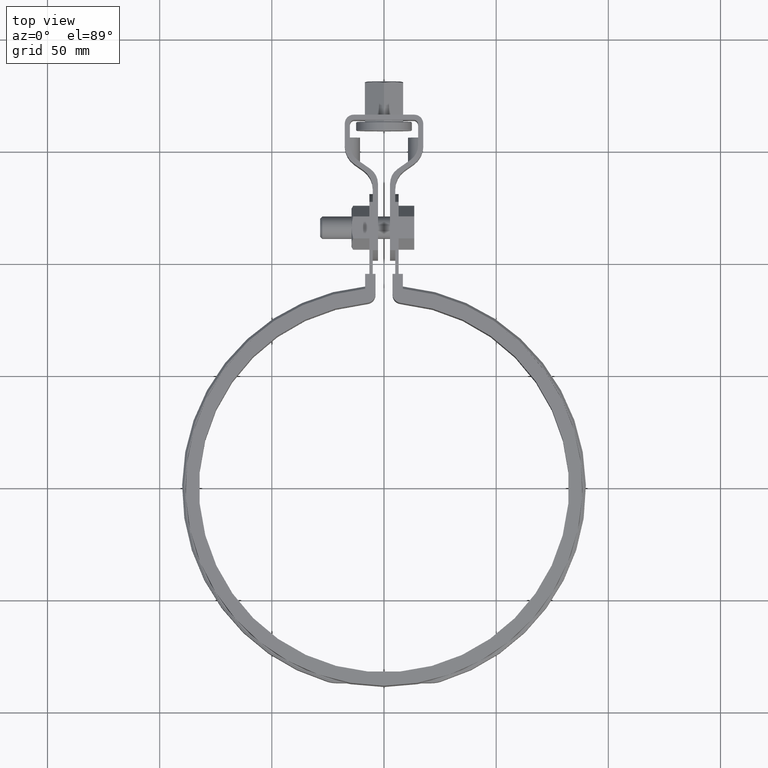
[diagram: clean part render]
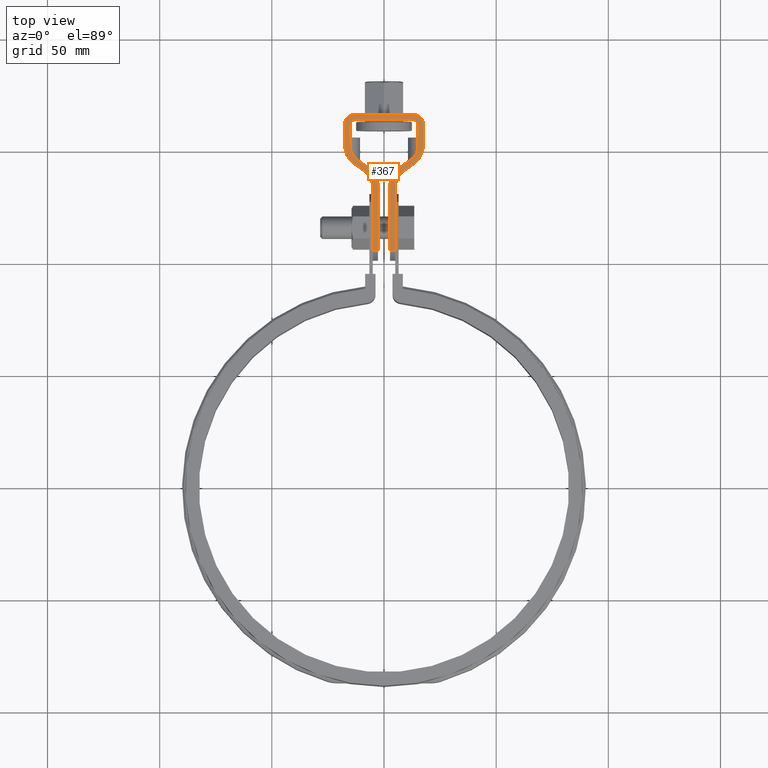
[diagram: same view with one face highlighted and labeled with its STEP entity id]
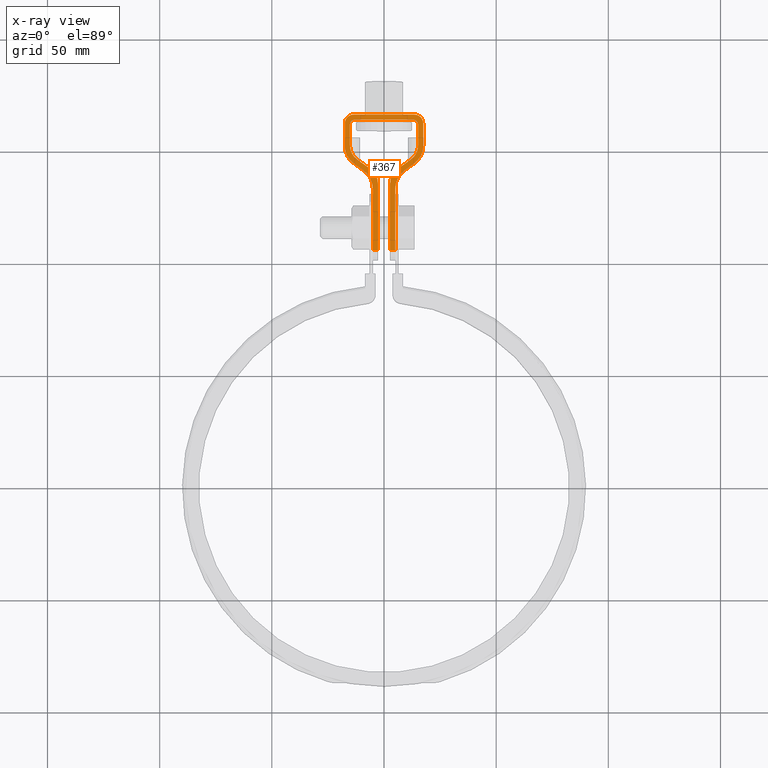
[diagram: x-ray of the same camera — body ghosted, the highlighted face saturated]
A machine part, top view. The second image highlights one B-rep face of the part: STEP entity #367.
The next image is the same camera in x-ray: the body ghosted, the highlighted face saturated — about 0% of this face is hidden behind the body in this view.
In plain terms, the highlighted planar face has unit normal (-0, 0, 1).
Its self-contained STEP definition (entity closure, byte-faithful):
#367 = ADVANCED_FACE( '', ( #604 ), #605, .T. );
#604 = FACE_OUTER_BOUND( '', #1358, .T. );
#605 = PLANE( '', #1359 );
#1358 = EDGE_LOOP( '', ( #3223, #3224, #3225, #3226, #3227, #3228, #3229, #3230, #3231, #3232, #3233, #3234, #3235, #3236, #3237, #3238, #3239, #3240, #3241, #3242, #3243, #3244, #3245, #3246, #3247, #3248, #3249, #3250 ) );
#1359 = AXIS2_PLACEMENT_3D( '', #3251, #3252, #3253 );
#3223 = ORIENTED_EDGE( '', *, *, #5144, .T. );
#3224 = ORIENTED_EDGE( '', *, *, #5092, .T. );
#3225 = ORIENTED_EDGE( '', *, *, #5094, .T. );
#3226 = ORIENTED_EDGE( '', *, *, #5159, .T. );
#3227 = ORIENTED_EDGE( '', *, *, #5164, .T. );
#3228 = ORIENTED_EDGE( '', *, *, #5166, .T. );
#3229 = ORIENTED_EDGE( '', *, *, #5152, .T. );
#3230 = ORIENTED_EDGE( '', *, *, #5167, .T. );
#3231 = ORIENTED_EDGE( '', *, *, #5168, .T. );
#3232 = ORIENTED_EDGE( '', *, *, #5156, .T. );
#3233 = ORIENTED_EDGE( '', *, *, #5169, .T. );
#3234 = ORIENTED_EDGE( '', *, *, #5147, .T. );
#3235 = ORIENTED_EDGE( '', *, *, #5063, .T. );
#3236 = ORIENTED_EDGE( '', *, *, #5170, .T. );
#3237 = ORIENTED_EDGE( '', *, *, #5171, .T. );
#3238 = ORIENTED_EDGE( '', *, *, #5172, .T. );
#3239 = ORIENTED_EDGE( '', *, *, #5127, .T. );
#3240 = ORIENTED_EDGE( '', *, *, #5173, .T. );
#3241 = ORIENTED_EDGE( '', *, *, #5174, .T. );
#3242 = ORIENTED_EDGE( '', *, *, #5100, .T. );
#3243 = ORIENTED_EDGE( '', *, *, #5175, .T. );
#3244 = ORIENTED_EDGE( '', *, *, #5176, .T. );
#3245 = ORIENTED_EDGE( '', *, *, #5177, .T. );
#3246 = ORIENTED_EDGE( '', *, *, #5125, .T. );
#3247 = ORIENTED_EDGE( '', *, *, #5116, .T. );
#3248 = ORIENTED_EDGE( '', *, *, #5124, .T. );
#3249 = ORIENTED_EDGE( '', *, *, #5134, .T. );
#3250 = ORIENTED_EDGE( '', *, *, #5161, .T. );
#3251 = CARTESIAN_POINT( '', ( 13.4999999999999, 162.102813742387, -6.90419943438678E-013 ) );
#3252 = DIRECTION( '', ( -1.59641724029688E-028, 1.75137682134619E-013, 1.00000000000000 ) );
#3253 = DIRECTION( '', ( 1.00000000000000, 9.11521279052786E-016, 0.000000000000000 ) );
#5063 = EDGE_CURVE( '', #5622, #5620, #5623, .T. );
#5092 = EDGE_CURVE( '', #5678, #5676, #5679, .T. );
#5094 = EDGE_CURVE( '', #5676, #5681, #5682, .T. );
#5100 = EDGE_CURVE( '', #5687, #5691, #5693, .T. );
#5116 = EDGE_CURVE( '', #5722, #5720, #5723, .T. );
#5124 = EDGE_CURVE( '', #5720, #5733, #5735, .T. );
#5125 = EDGE_CURVE( '', #5736, #5722, #5737, .T. );
#5127 = EDGE_CURVE( '', #5739, #5740, #5741, .T. );
#5134 = EDGE_CURVE( '', #5733, #5748, #5750, .T. );
#5144 = EDGE_CURVE( '', #5765, #5678, #5766, .T. );
#5147 = EDGE_CURVE( '', #5770, #5622, #5771, .F. );
#5152 = EDGE_CURVE( '', #5778, #5776, #5779, .T. );
#5156 = EDGE_CURVE( '', #5784, #5785, #5786, .F. );
#5159 = EDGE_CURVE( '', #5681, #5789, #5790, .T. );
#5161 = EDGE_CURVE( '', #5748, #5765, #5792, .F. );
#5164 = EDGE_CURVE( '', #5789, #5796, #5798, .T. );
#5166 = EDGE_CURVE( '', #5796, #5778, #5800, .F. );
#5167 = EDGE_CURVE( '', #5776, #5801, #5802, .F. );
#5168 = EDGE_CURVE( '', #5801, #5784, #5803, .T. );
#5169 = EDGE_CURVE( '', #5785, #5770, #5804, .T. );
#5170 = EDGE_CURVE( '', #5620, #5805, #5806, .T. );
#5171 = EDGE_CURVE( '', #5805, #5807, #5808, .T. );
#5172 = EDGE_CURVE( '', #5807, #5739, #5809, .T. );
#5173 = EDGE_CURVE( '', #5740, #5810, #5811, .F. );
#5174 = EDGE_CURVE( '', #5810, #5687, #5812, .T. );
#5175 = EDGE_CURVE( '', #5691, #5813, #5814, .T. );
#5176 = EDGE_CURVE( '', #5813, #5815, #5816, .T. );
#5177 = EDGE_CURVE( '', #5815, #5736, #5817, .T. );
#5620 = VERTEX_POINT( '', #7489 );
#5622 = VERTEX_POINT( '', #7492 );
#5623 = LINE( '', #7493, #7494 );
#5676 = VERTEX_POINT( '', #7563 );
#5678 = VERTEX_POINT( '', #7565 );
#5679 = LINE( '', #7566, #7567 );
#5681 = VERTEX_POINT( '', #7569 );
#5682 = LINE( '', #7570, #7571 );
#5687 = VERTEX_POINT( '', #7577 );
#5691 = VERTEX_POINT( '', #7601 );
#5693 = CIRCLE( '', #7604, 9.99999999999801 );
#5720 = VERTEX_POINT( '', #7654 );
#5722 = VERTEX_POINT( '', #7657 );
#5723 = LINE( '', #7658, #7659 );
#5733 = VERTEX_POINT( '', #7687 );
#5735 = CIRCLE( '', #7690, 9.99999999999801 );
#5736 = VERTEX_POINT( '', #7691 );
#5737 = CIRCLE( '', #7692, 3.99999999999920 );
#5739 = VERTEX_POINT( '', #7695 );
#5740 = VERTEX_POINT( '', #7696 );
#5741 = LINE( '', #7697, #7698 );
#5748 = VERTEX_POINT( '', #7726 );
#5750 = LINE( '', #7729, #7730 );
#5765 = VERTEX_POINT( '', #7768 );
#5766 = LINE( '', #7769, #7770 );
#5770 = VERTEX_POINT( '', #7775 );
#5771 = CIRCLE( '', #7776, 7.99999999999841 );
#5776 = VERTEX_POINT( '', #7784 );
#5778 = VERTEX_POINT( '', #7787 );
#5779 = LINE( '', #7788, #7789 );
#5784 = VERTEX_POINT( '', #7797 );
#5785 = VERTEX_POINT( '', #7798 );
#5786 = CIRCLE( '', #7799, 1.99999999999960 );
#5789 = VERTEX_POINT( '', #7804 );
#5790 = CIRCLE( '', #7805, 7.99999999999841 );
#5792 = CIRCLE( '', #7808, 9.99999999999801 );
#5796 = VERTEX_POINT( '', #7812 );
#5798 = LINE( '', #7815, #7816 );
#5800 = CIRCLE( '', #7819, 7.99999999999841 );
#5801 = VERTEX_POINT( '', #7820 );
#5802 = CIRCLE( '', #7821, 1.99999999999960 );
#5803 = LINE( '', #7822, #7823 );
#5804 = LINE( '', #7824, #7825 );
#5805 = VERTEX_POINT( '', #7826 );
#5806 = CIRCLE( '', #7827, 7.99999999999841 );
#5807 = VERTEX_POINT( '', #7828 );
#5808 = LINE( '', #7829, #7830 );
#5809 = LINE( '', #7831, #7832 );
#5810 = VERTEX_POINT( '', #7833 );
#5811 = CIRCLE( '', #7834, 9.99999999999801 );
#5812 = LINE( '', #7835, #7836 );
#5813 = VERTEX_POINT( '', #7837 );
#5814 = LINE( '', #7838, #7839 );
#5815 = VERTEX_POINT( '', #7840 );
#5816 = CIRCLE( '', #7841, 3.99999999999920 );
#5817 = LINE( '', #7842, #7843 );
#7489 = CARTESIAN_POINT( '', ( 6.11138850919204, 141.936203680936, 2.84354768626409E-012 ) );
#7492 = CARTESIAN_POINT( '', ( 11.7886114908084, 145.911438008762, 2.14551703064533E-012 ) );
#7493 = CARTESIAN_POINT( '', ( 20.5444285656342, 152.042327127741, 1.07155036339676E-012 ) );
#7494 = VECTOR( '', #9680, 1000.00000000000 );
#7563 = CARTESIAN_POINT( '', ( -2.69999999999998, 105.725658661500, 9.13859055873880E-012 ) );
#7565 = CARTESIAN_POINT( '', ( -4.99999999999999, 105.725658661500, 9.13685583526283E-012 ) );
#7566 = CARTESIAN_POINT( '', ( 81.1487655465074, 105.725658661500, 9.18376065640719E-012 ) );
#7567 = VECTOR( '', #9733, 1000.00000000000 );
#7569 = CARTESIAN_POINT( '', ( -2.69999999999998, 135.382987326627, 3.98986399474666E-012 ) );
#7570 = CARTESIAN_POINT( '', ( -2.69999999999997, 162.102813742387, -6.90419943438680E-013 ) );
#7571 = VECTOR( '', #9737, 1000.00000000000 );
#7577 = CARTESIAN_POINT( '', ( 13.2357643635101, 144.116963805019, 2.46245376859549E-012 ) );
#7601 = CARTESIAN_POINT( '', ( 17.5000000000000, 152.308484247907, 1.02695629777827E-012 ) );
#7604 = AXIS2_PLACEMENT_3D( '', #9744, #9745, #9746 );
#7654 = CARTESIAN_POINT( '', ( -17.4999999999999, 152.308484247907, 1.02645127890554E-012 ) );
#7657 = CARTESIAN_POINT( '', ( -17.4999999999999, 162.102813742388, -6.89552581700784E-013 ) );
#7658 = CARTESIAN_POINT( '', ( -17.4999999999999, 162.102813742387, -6.90419943438682E-013 ) );
#7659 = VECTOR( '', #9771, 1000.00000000000 );
#7687 = CARTESIAN_POINT( '', ( -13.2357643635104, 144.116963805019, 2.45978724260108E-012 ) );
#7690 = AXIS2_PLACEMENT_3D( '', #9782, #9783, #9784 );
#7691 = CARTESIAN_POINT( '', ( -13.4999999999999, 166.102813742387, -1.38843797570219E-012 ) );
#7692 = AXIS2_PLACEMENT_3D( '', #9785, #9786, #9787 );
#7695 = CARTESIAN_POINT( '', ( 4.99999999999999, 105.725658661500, 9.14206000569076E-012 ) );
#7696 = CARTESIAN_POINT( '', ( 4.99999999999999, 133.144549009255, 4.38538094726937E-012 ) );
#7697 = CARTESIAN_POINT( '', ( 4.99999999999999, 162.102813742387, -6.90419943438679E-013 ) );
#7698 = VECTOR( '', #9789, 1000.00000000000 );
#7726 = CARTESIAN_POINT( '', ( -9.26423563648981, 141.336069452142, 2.94988347645215E-012 ) );
#7729 = CARTESIAN_POINT( '', ( -3.74638243434747, 137.472427045266, 3.62328889277438E-012 ) );
#7730 = VECTOR( '', #9799, 1000.00000000000 );
#7768 = CARTESIAN_POINT( '', ( -4.99999999999997, 133.144549009255, 4.38538094726937E-012 ) );
#7769 = CARTESIAN_POINT( '', ( -4.99999999999999, 162.102813742387, -6.90419943438680E-013 ) );
#7770 = VECTOR( '', #9816, 1000.00000000000 );
#7775 = CARTESIAN_POINT( '', ( 15.2000000000000, 152.464654363073, 9.98796779196602E-013 ) );
#7776 = AXIS2_PLACEMENT_3D( '', #9821, #9822, #9823 );
#7784 = CARTESIAN_POINT( '', ( -15.1999999999999, 161.802813742388, -6.31439345255558E-013 ) );
#7787 = CARTESIAN_POINT( '', ( -15.1999999999999, 152.464654363073, 9.99200722162640E-013 ) );
#7788 = CARTESIAN_POINT( '', ( -15.1999999999999, 162.102813742387, -6.90419943438681E-013 ) );
#7789 = VECTOR( '', #9828, 1000.00000000000 );
#7797 = CARTESIAN_POINT( '', ( 13.1999999999999, 163.802813742387, -9.84226589117882E-013 ) );
#7798 = CARTESIAN_POINT( '', ( 15.1999999999999, 161.802813742388, -6.31439345255558E-013 ) );
#7799 = AXIS2_PLACEMENT_3D( '', #9832, #9833, #9834 );
#7804 = CARTESIAN_POINT( '', ( -6.11138850919176, 141.936203680937, 2.84354768626403E-012 ) );
#7805 = AXIS2_PLACEMENT_3D( '', #9837, #9838, #9839 );
#7808 = AXIS2_PLACEMENT_3D( '', #9841, #9842, #9843 );
#7812 = CARTESIAN_POINT( '', ( -11.7886114908082, 145.911438008762, 2.14551703064526E-012 ) );
#7815 = CARTESIAN_POINT( '', ( -2.42715663073957, 139.356476747131, 3.29332079496332E-012 ) );
#7816 = VECTOR( '', #9848, 1000.00000000000 );
#7819 = AXIS2_PLACEMENT_3D( '', #9850, #9851, #9852 );
#7820 = CARTESIAN_POINT( '', ( -13.1999999999999, 163.802813742387, -9.82561254581032E-013 ) );
#7821 = AXIS2_PLACEMENT_3D( '', #9853, #9854, #9855 );
#7822 = CARTESIAN_POINT( '', ( 13.4999999999999, 163.802813742387, -9.88154003067460E-013 ) );
#7823 = VECTOR( '', #9856, 1000.00000000000 );
#7824 = CARTESIAN_POINT( '', ( 15.2000000000000, 162.102813742387, -6.90419943438678E-013 ) );
#7825 = VECTOR( '', #9857, 1000.00000000000 );
#7826 = CARTESIAN_POINT( '', ( 2.69999999999999, 135.382987326627, 3.98986399474666E-012 ) );
#7827 = AXIS2_PLACEMENT_3D( '', #9858, #9859, #9860 );
#7828 = CARTESIAN_POINT( '', ( 2.69999999999998, 105.725658661500, 9.14032528221478E-012 ) );
#7829 = CARTESIAN_POINT( '', ( 2.69999999999997, 162.102813742387, -6.90419943438679E-013 ) );
#7830 = VECTOR( '', #9861, 1000.00000000000 );
#7831 = CARTESIAN_POINT( '', ( 81.1487655465074, 105.725658661500, 9.18376065640719E-012 ) );
#7832 = VECTOR( '', #9862, 1000.00000000000 );
#7833 = CARTESIAN_POINT( '', ( 9.26423563648958, 141.336069452143, 2.94928087842121E-012 ) );
#7834 = AXIS2_PLACEMENT_3D( '', #9863, #9864, #9865 );
#7835 = CARTESIAN_POINT( '', ( 21.8636543692411, 150.158277425878, 1.40151846120756E-012 ) );
#7836 = VECTOR( '', #9866, 1000.00000000000 );
#7837 = CARTESIAN_POINT( '', ( 17.5000000000000, 162.102813742388, -6.86950496486815E-013 ) );
#7838 = CARTESIAN_POINT( '', ( 17.5000000000000, 162.102813742387, -6.90419943438677E-013 ) );
#7839 = VECTOR( '', #9867, 1000.00000000000 );
#7840 = CARTESIAN_POINT( '', ( 13.5000000000000, 166.102813742387, -1.38843797570219E-012 ) );
#7841 = AXIS2_PLACEMENT_3D( '', #9868, #9869, #9870 );
#7842 = CARTESIAN_POINT( '', ( 13.4999999999999, 166.102813742387, -1.39097067197708E-012 ) );
#7843 = VECTOR( '', #9871, 1000.00000000000 );
#9680 = DIRECTION( '', ( -0.819152044288939, -0.573576436351121, 1.00454847589570E-013 ) );
#9733 = DIRECTION( '', ( 1.00000000000000, 3.03451482752664E-016, 1.09521223212606E-015 ) );
#9737 = DIRECTION( '', ( -2.42736161093456E-016, 1.00000000000000, -1.75137682134619E-013 ) );
#9744 = CARTESIAN_POINT( '', ( 7.49999999999996, 152.308484247907, 1.02695629777827E-012 ) );
#9745 = DIRECTION( '', ( -1.59641724029688E-028, 1.75137682134619E-013, 1.00000000000000 ) );
#9746 = DIRECTION( '', ( 0.000000000000000, -1.00000000000000, 1.75137682134619E-013 ) );
#9771 = DIRECTION( '', ( 2.34062543713413E-016, -1.00000000000000, 1.75137682134619E-013 ) );
#9782 = CARTESIAN_POINT( '', ( -7.49999999999998, 152.308484247907, 1.02695629777827E-012 ) );
#9783 = DIRECTION( '', ( -1.59641724029688E-028, 1.75137682134619E-013, 1.00000000000000 ) );
#9784 = DIRECTION( '', ( 0.000000000000000, -1.00000000000000, 1.75137682134619E-013 ) );
#9785 = CARTESIAN_POINT( '', ( -13.4999999999999, 162.102813742388, -6.86950496486816E-013 ) );
#9786 = DIRECTION( '', ( -1.59641724029688E-028, 1.75137682134619E-013, 1.00000000000000 ) );
#9787 = DIRECTION( '', ( 0.000000000000000, -1.00000000000000, 1.75137682134619E-013 ) );
#9789 = DIRECTION( '', ( -2.42736161093456E-016, 1.00000000000000, -1.75137682134619E-013 ) );
#9799 = DIRECTION( '', ( 0.819152044288939, -0.573576436351121, 1.00454847589570E-013 ) );
#9816 = DIRECTION( '', ( 2.42736161093295E-016, -1.00000000000000, 1.75137682134619E-013 ) );
#9821 = CARTESIAN_POINT( '', ( 7.19999999999996, 152.464654363073, 9.99200722162641E-013 ) );
#9822 = DIRECTION( '', ( -1.59641724029688E-028, 1.75137682134619E-013, 1.00000000000000 ) );
#9823 = DIRECTION( '', ( 0.000000000000000, -1.00000000000000, 1.75137682134619E-013 ) );
#9828 = DIRECTION( '', ( -2.42736161093456E-016, 1.00000000000000, -1.75137682134619E-013 ) );
#9832 = CARTESIAN_POINT( '', ( 13.2000000000000, 161.802813742388, -6.31439345255558E-013 ) );
#9833 = DIRECTION( '', ( -1.59641724029688E-028, 1.75137682134619E-013, 1.00000000000000 ) );
#9834 = DIRECTION( '', ( 0.000000000000000, -1.00000000000000, 1.75137682134619E-013 ) );
#9837 = CARTESIAN_POINT( '', ( -10.6999999999999, 135.382987326627, 3.98986399474666E-012 ) );
#9838 = DIRECTION( '', ( -1.59641724029688E-028, 1.75137682134619E-013, 1.00000000000000 ) );
#9839 = DIRECTION( '', ( 0.000000000000000, -1.00000000000000, 1.75137682134619E-013 ) );
#9841 = CARTESIAN_POINT( '', ( -14.9999999999999, 133.144549009255, 4.38538094726937E-012 ) );
#9842 = DIRECTION( '', ( -1.59641724029688E-028, 1.75137682134619E-013, 1.00000000000000 ) );
#9843 = DIRECTION( '', ( 0.000000000000000, -1.00000000000000, 1.75137682134619E-013 ) );
#9848 = DIRECTION( '', ( -0.819152044288939, 0.573576436351121, -1.00454847589570E-013 ) );
#9850 = CARTESIAN_POINT( '', ( -7.20000000000000, 152.464654363073, 9.99200722162641E-013 ) );
#9851 = DIRECTION( '', ( -1.59641724029688E-028, 1.75137682134619E-013, 1.00000000000000 ) );
#9852 = DIRECTION( '', ( 0.000000000000000, -1.00000000000000, 1.75137682134619E-013 ) );
#9853 = CARTESIAN_POINT( '', ( -13.1999999999999, 161.802813742388, -6.31439345255558E-013 ) );
#9854 = DIRECTION( '', ( -1.59641724029688E-028, 1.75137682134619E-013, 1.00000000000000 ) );
#9855 = DIRECTION( '', ( 0.000000000000000, -1.00000000000000, 1.75137682134619E-013 ) );
#9856 = DIRECTION( '', ( 1.00000000000000, 3.03451482752472E-016, 1.06495934700107E-028 ) );
#9857 = DIRECTION( '', ( 2.42736161093295E-016, -1.00000000000000, 1.75137682134619E-013 ) );
#9858 = CARTESIAN_POINT( '', ( 10.7000000000000, 135.382987326627, 3.98986399474666E-012 ) );
#9859 = DIRECTION( '', ( -1.59641724029688E-028, 1.75137682134619E-013, 1.00000000000000 ) );
#9860 = DIRECTION( '', ( 0.000000000000000, -1.00000000000000, 1.75137682134619E-013 ) );
#9861 = DIRECTION( '', ( 2.42736161093295E-016, -1.00000000000000, 1.75137682134619E-013 ) );
#9862 = DIRECTION( '', ( 1.00000000000000, 3.03451482752664E-016, 1.09521223212606E-015 ) );
#9863 = CARTESIAN_POINT( '', ( 15.0000000000000, 133.144549009255, 4.38538094726937E-012 ) );
#9864 = DIRECTION( '', ( -1.59641724029688E-028, 1.75137682134619E-013, 1.00000000000000 ) );
#9865 = DIRECTION( '', ( 0.000000000000000, -1.00000000000000, 1.75137682134619E-013 ) );
#9866 = DIRECTION( '', ( 0.819152044288939, 0.573576436351121, -1.00454847589570E-013 ) );
#9867 = DIRECTION( '', ( -2.34062543713574E-016, 1.00000000000000, -1.75137682134619E-013 ) );
#9868 = CARTESIAN_POINT( '', ( 13.5000000000000, 162.102813742388, -6.86950496486816E-013 ) );
#9869 = DIRECTION( '', ( -1.59641724029688E-028, 1.75137682134619E-013, 1.00000000000000 ) );
#9870 = DIRECTION( '', ( 0.000000000000000, -1.00000000000000, 1.75137682134619E-013 ) );
#9871 = DIRECTION( '', ( -1.00000000000000, 5.31457893295533E-029, -1.59641724029698E-028 ) );